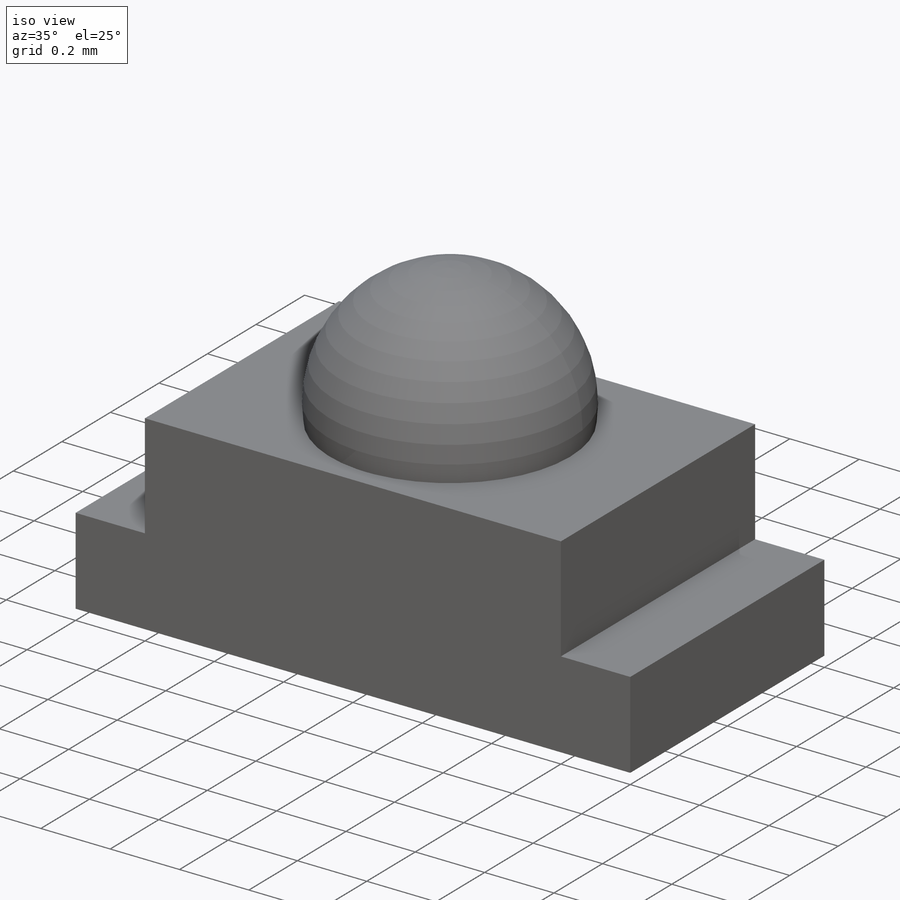
[diagram: iso view]
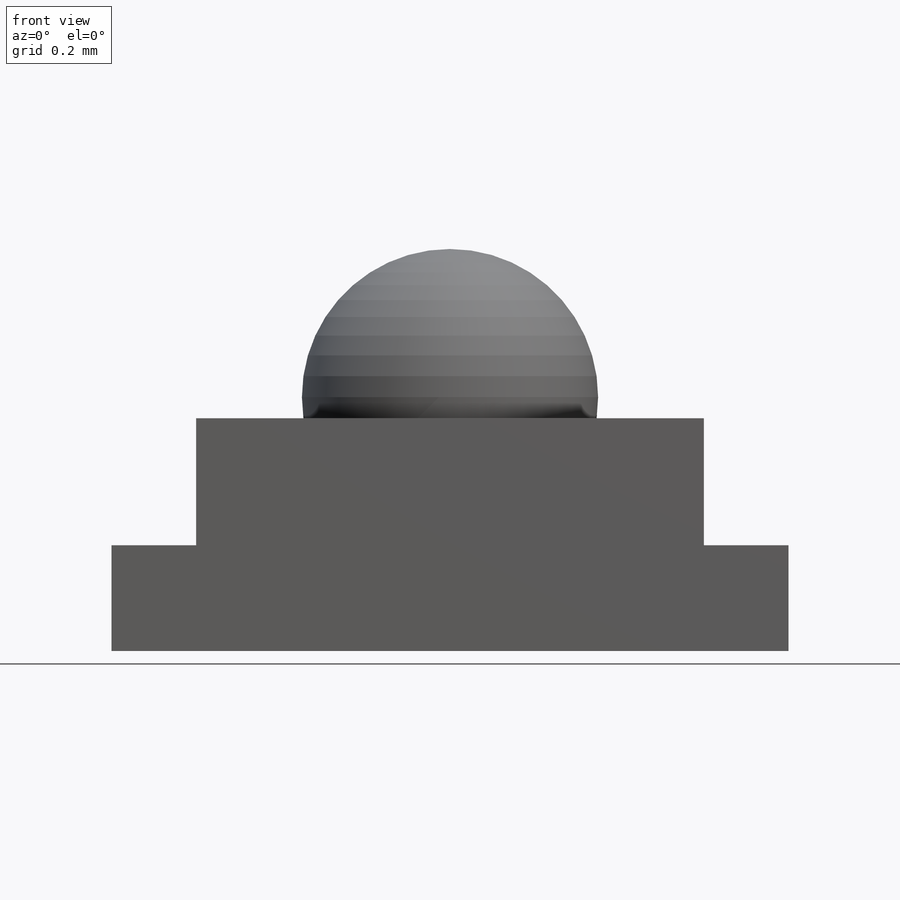
[diagram: front view]
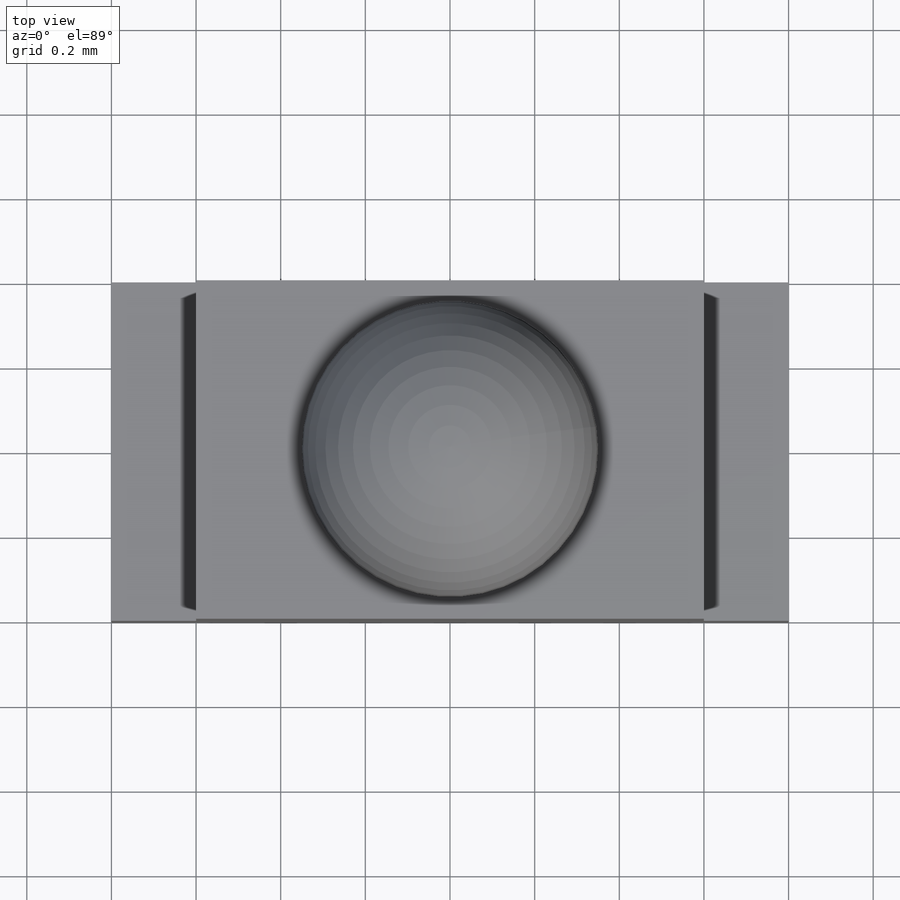
[diagram: top view]
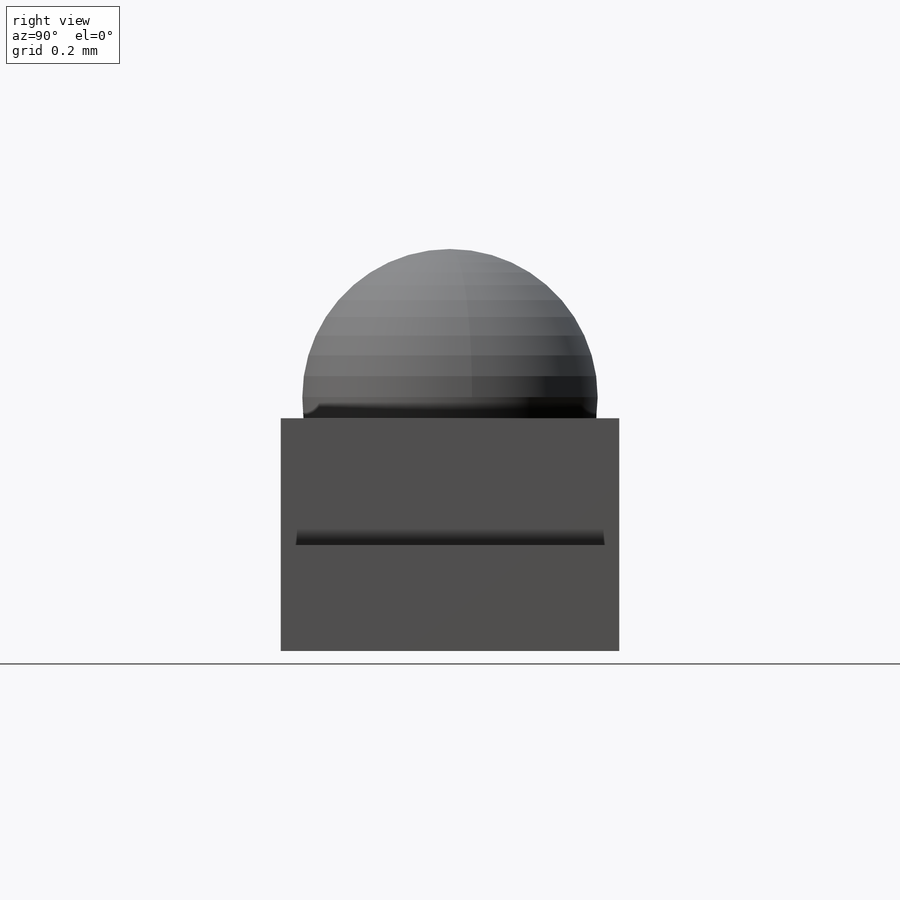
[diagram: right view]
SOLIDWORKS PART (.sldprt)
format: sldprt  version: not decoded by parser v0  size: 249,856 bytes
history: native  units: mm
features: sketch x5, extrude x3, material x1, revolve x1, cut_extrude x1 (+13 scaffold rows collapsed)
feature tree (24):
  scaffold x13  (default folders/planes/origin — collapsed)
  material  "Material <not specified>"
  sketch  "Sketch1"  dims[D5=0.35mm D1=1.6mm D2=0.25mm D3=0.55mm D4=1.2mm D6=0.95mm]
  extrude  "Extrude1"  Depth=0.8mm
  extrude  "Extrude2"  [1 undecoded]
  sketch  "Sketch1<6>"  dims[D1=0.8mm]
  revolve  "Revolve1"  [1 undecoded]
  sketch  "Sketch1<3>"  dims[D1=360.0deg]
  sketch  "Sketch2"  dims[D1=0.3mm]
  extrude  "Extrude3"  Depth=0.0001mm
  sketch  "Sketch3"
  cut_extrude  "Cut-Extrude1"  Depth=0.0001mm
decode coverage: 7 of 10 modeling features carry decoded parameters
note: 2 parameter values undecoded
note: suppression state not decoded; provenance and decode notes live in map.json
